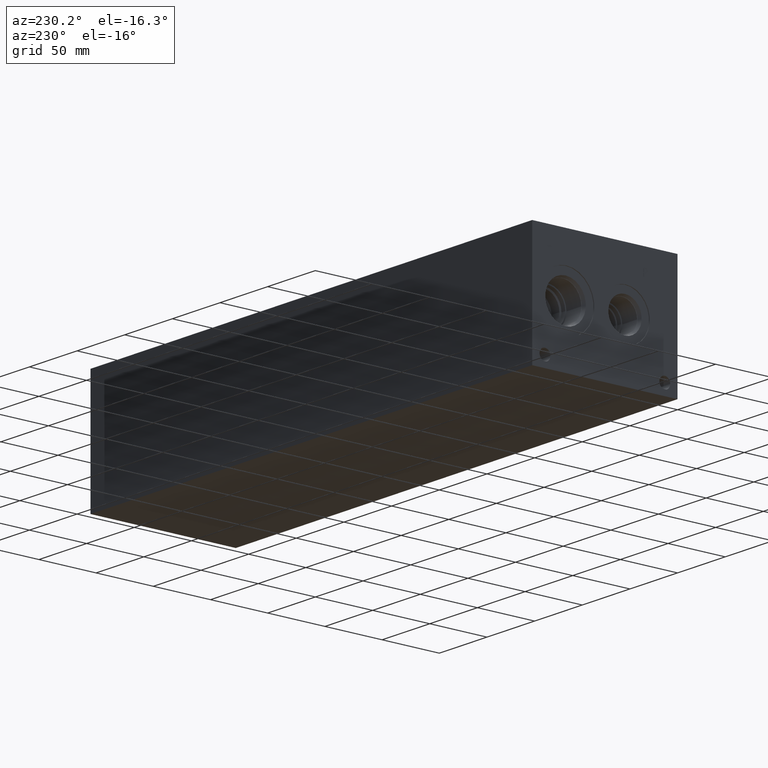
[diagram: clean part render]
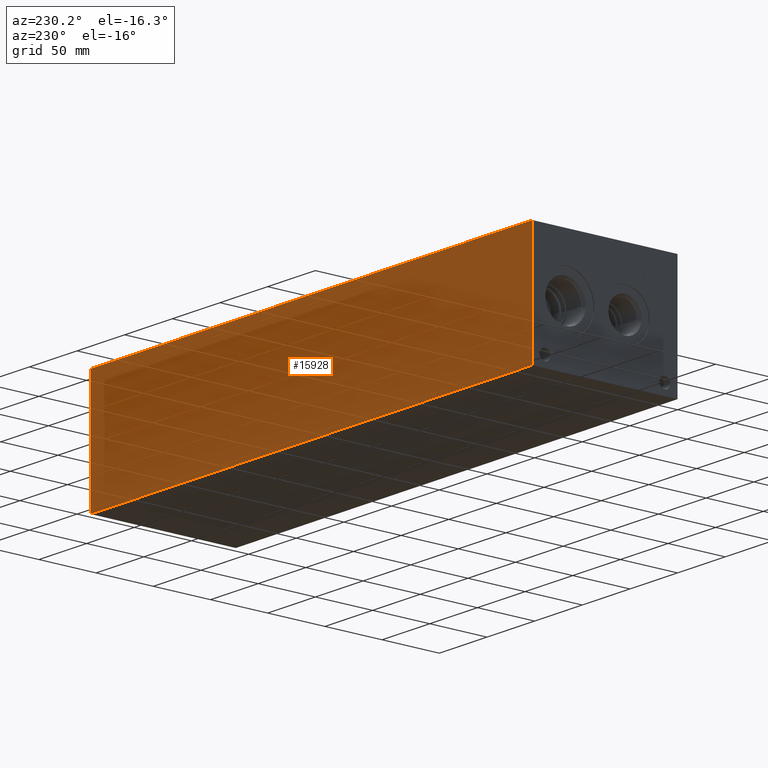
[diagram: same view with one face highlighted and labeled with its STEP entity id]
A machine part, auxiliary view. The second image highlights one B-rep face of the part: STEP entity #15928.
In plain terms, the highlighted planar face has unit normal (0, 1, 0).
Its self-contained STEP definition (entity closure, byte-faithful):
#2185=FACE_OUTER_BOUND('',#3133,.T.);
#3133=EDGE_LOOP('',(#14034,#14035,#14036,#14037));
#3581=LINE('',#22599,#4980);
#3625=LINE('',#22839,#5024);
#4567=LINE('',#27525,#5966);
#4568=LINE('',#27526,#5967);
#4980=VECTOR('',#17629,10.);
#5024=VECTOR('',#17709,10.);
#5966=VECTOR('',#20665,10.);
#5967=VECTOR('',#20666,10.);
#6470=VERTEX_POINT('',#22596);
#6471=VERTEX_POINT('',#22598);
#6520=VERTEX_POINT('',#22835);
#6521=VERTEX_POINT('',#22837);
#8088=EDGE_CURVE('',#6470,#6471,#3581,.T.);
#8156=EDGE_CURVE('',#6520,#6521,#3625,.T.);
#9704=EDGE_CURVE('',#6470,#6520,#4567,.T.);
#9705=EDGE_CURVE('',#6471,#6521,#4568,.T.);
#14034=ORIENTED_EDGE('',*,*,#9704,.T.);
#14035=ORIENTED_EDGE('',*,*,#8156,.T.);
#14036=ORIENTED_EDGE('',*,*,#9705,.F.);
#14037=ORIENTED_EDGE('',*,*,#8088,.F.);
#14556=PLANE('',#17051);
#15928=ADVANCED_FACE('',(#2185),#14556,.T.);
#17051=AXIS2_PLACEMENT_3D('',#27524,#20663,#20664);
#17629=DIRECTION('',(0.,0.,1.));
#17709=DIRECTION('',(0.,0.,1.));
#20663=DIRECTION('center_axis',(0.,1.,0.));
#20664=DIRECTION('ref_axis',(-1.,0.,0.));
#20665=DIRECTION('',(-1.,0.,0.));
#20666=DIRECTION('',(-1.,0.,0.));
#22596=CARTESIAN_POINT('',(463.55,127.,0.));
#22598=CARTESIAN_POINT('',(463.55,127.,101.6));
#22599=CARTESIAN_POINT('',(463.55,127.,0.));
#22835=CARTESIAN_POINT('',(0.,127.,0.));
#22837=CARTESIAN_POINT('',(0.,127.,101.6));
#22839=CARTESIAN_POINT('',(0.,127.,0.));
#27524=CARTESIAN_POINT('Origin',(463.55,127.,0.));
#27525=CARTESIAN_POINT('',(463.55,127.,0.));
#27526=CARTESIAN_POINT('',(463.55,127.,101.6));